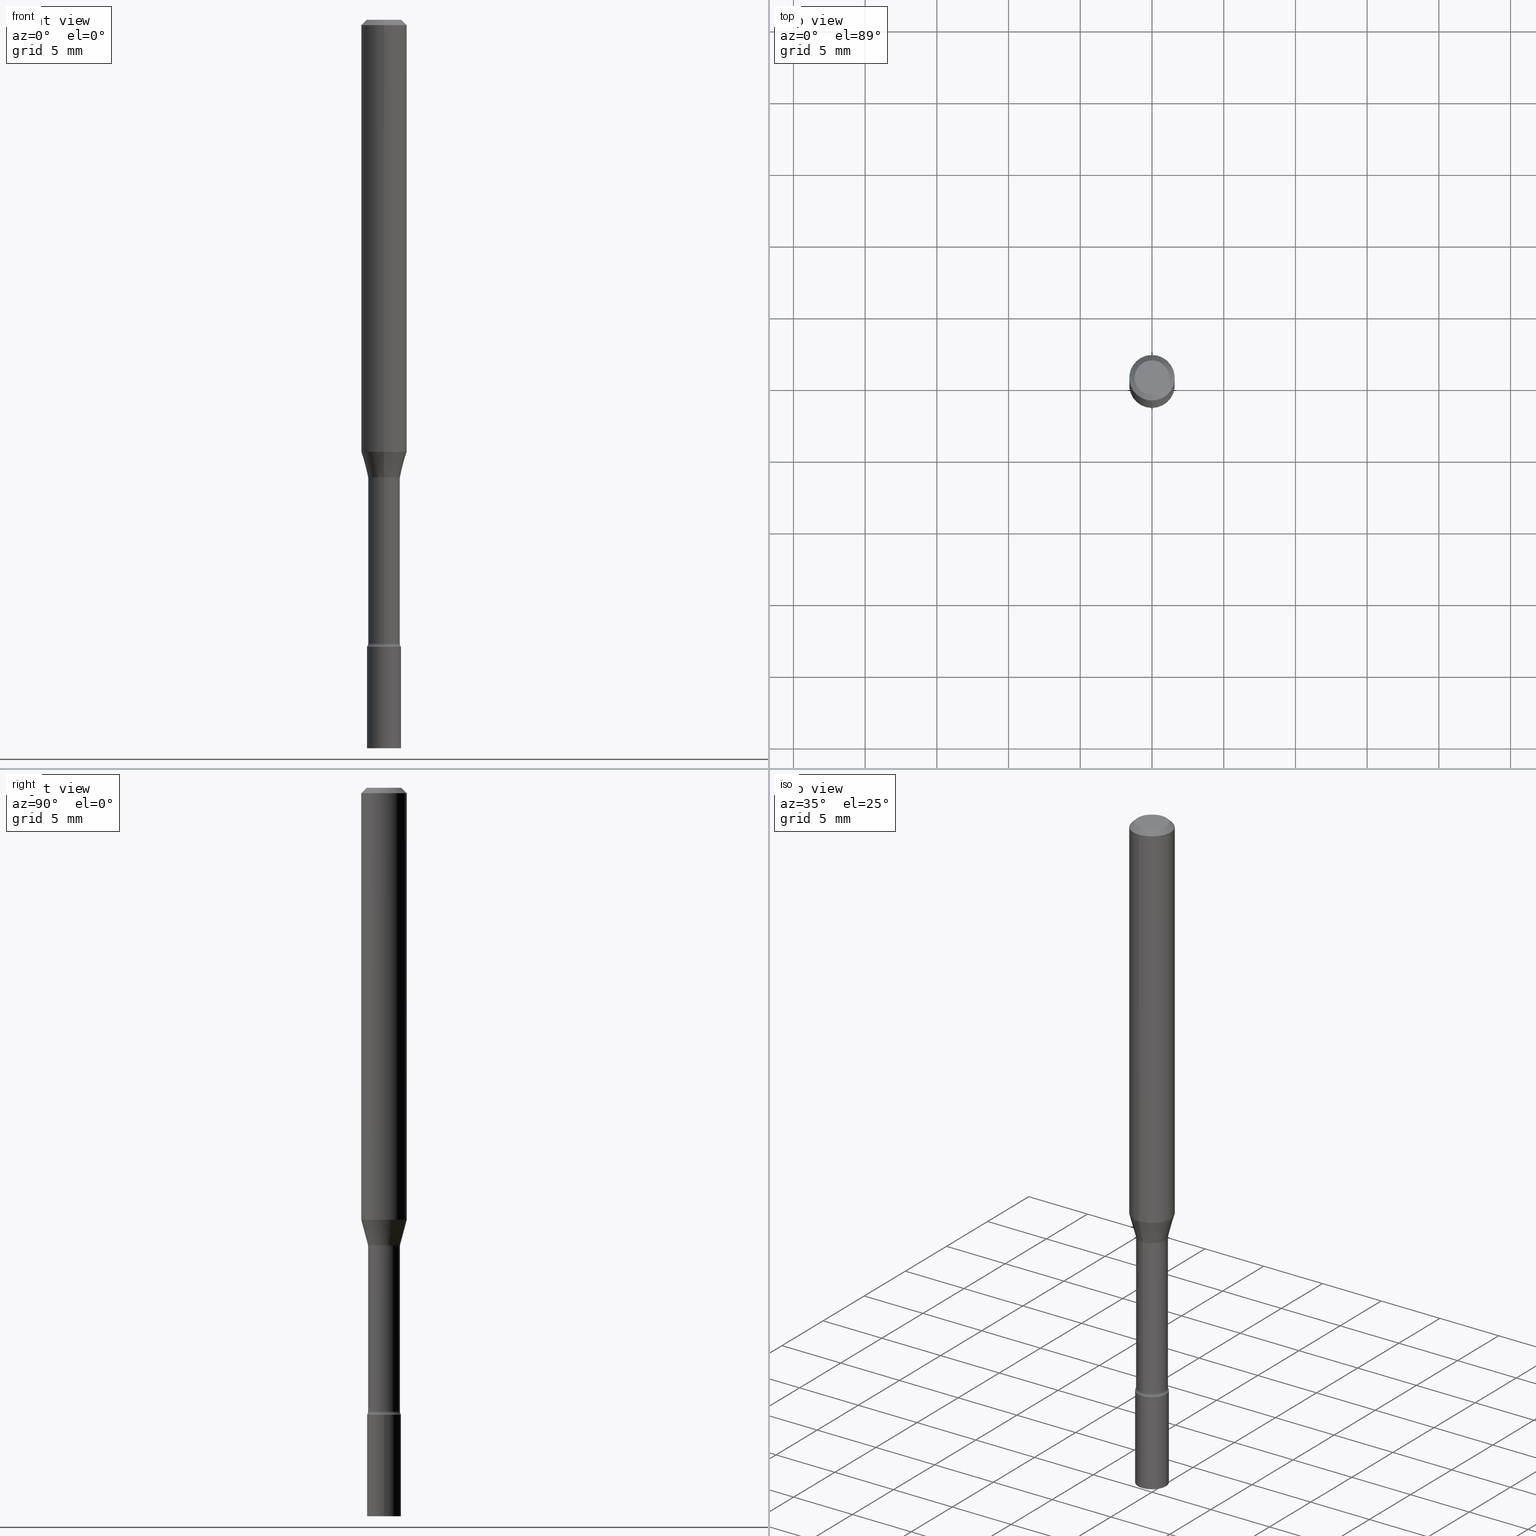
[diagram: canonical four-view strip — front | top / right | iso, engineering-drawing reading convention]
A machine part, canonical four-view strip (front | top / right | iso — engineering-drawing reading convention). The complete STEP part file that produces these views, byte-faithful:
ISO-10303-21;
HEADER;
FILE_DESCRIPTION (( 'STEP AP203' ),
    '1' );
FILE_NAME ('04287.STEP',
    '2024-03-08T22:51:43',
    ( '' ),
    ( '' ),
    'SwSTEP 2.0',
    'SolidWorks 2023',
    '' );
FILE_SCHEMA (( 'CONFIG_CONTROL_DESIGN' ));
ENDSEC;

DATA;
#1 = AXIS2_PLACEMENT_3D ( 'NONE', #285, #387, #252 ) ;
#2 = LOCAL_TIME ( 17, 51, 43.00000000000000000, #496 ) ;
#3 = DIRECTION ( 'NONE',  ( -2.445472560162581844E-29, 3.491475962933780831E-15, 1.000000000000000000 ) ) ;
#4 = DIRECTION ( 'NONE',  ( -2.445472560162581844E-29, 3.491475962933780831E-15, 1.000000000000000000 ) ) ;
#5 = CARTESIAN_POINT ( 'NONE',  ( -0.04649999999999999967, 3.304023721284465841E-16, -2.287304816968531530E-30 ) ) ;
#6 = EDGE_CURVE ( 'NONE', #137, #97, #373, .T. ) ;
#7 = DIRECTION ( 'NONE',  ( -6.982962677686265922E-15, -1.000000000000000000, 4.370956789862821150E-15 ) ) ;
#8 = TOROIDAL_SURFACE ( 'NONE', #453, 0.05870000000000000911, 0.01500000000000004108 ) ;
#9 = LINE ( 'NONE', #212, #74 ) ;
#10 = AXIS2_PLACEMENT_3D ( 'NONE', #476, #195, #115 ) ;
#11 = CC_DESIGN_PERSON_AND_ORGANIZATION_ASSIGNMENT ( #17, #173, ( #180 ) ) ;
#12 = DIRECTION ( 'NONE',  ( -1.807323732225330139E-15, -0.2588190451025181860, 0.9659258262890689783 ) ) ;
#13 = EDGE_CURVE ( 'NONE', #276, #502, #428, .T. ) ;
#14 = VECTOR ( 'NONE', #4, 39.37007874015748143 ) ;
#15 = CARTESIAN_POINT ( 'NONE',  ( -4.364351673553916201E-16, -0.06250000000000000000, 2.182172476833613019E-16 ) ) ;
#16 = ORIENTED_EDGE ( 'NONE', *, *, #46, .T. ) ;
#17 = PERSON_AND_ORGANIZATION ( #348, #108 ) ;
#18 = CARTESIAN_POINT ( 'NONE',  ( 3.066848801026419586E-29, -4.378633825285753837E-15, -1.254092501787273051 ) ) ;
#19 = APPROVAL_ROLE ( '' ) ;
#20 = DIRECTION ( 'NONE',  ( -6.982962677686266711E-15, -1.000000000000000000, 6.179098042681425901E-15 ) ) ;
#21 = ORIENTED_EDGE ( 'NONE', *, *, #456, .F. ) ;
#22 = APPROVAL_DATE_TIME ( #386, #95 ) ;
#23 = CIRCLE ( 'NONE', #165, 0.06250000000000000000 ) ;
#24 = CARTESIAN_POINT ( 'NONE',  ( 4.187310283291024254E-29, -5.978369332325803613E-15, -1.712273030308291366 ) ) ;
#25 = ADVANCED_FACE ( 'NONE', ( #356 ), #214, .T. ) ;
#26 = CARTESIAN_POINT ( 'NONE',  ( -4.287811248607203282E-16, -0.06250000000000005551, -0.01499999999999981209 ) ) ;
#27 = DIRECTION ( 'NONE',  ( -2.445472560162581844E-29, 3.491475962933780831E-15, 1.000000000000000000 ) ) ;
#28 = COORDINATED_UNIVERSAL_TIME_OFFSET ( 5, 0, .BEHIND. ) ;
#29 = FACE_OUTER_BOUND ( 'NONE', #314, .T. ) ;
#30 = ORIENTED_EDGE ( 'NONE', *, *, #144, .T. ) ;
#31 = EDGE_CURVE ( 'NONE', #70, #242, #167, .T. ) ;
#32 = CIRCLE ( 'NONE', #50, 0.04370000000000003743 ) ;
#33 = AXIS2_PLACEMENT_3D ( 'NONE', #250, #369, #78 ) ;
#34 = CARTESIAN_POINT ( 'NONE',  ( 3.668208840243879843E-31, -5.237213944400681970E-17, -0.01500000000000003067 ) ) ;
#35 = ORIENTED_EDGE ( 'NONE', *, *, #6, .F. ) ;
#36 = CARTESIAN_POINT ( 'NONE',  ( 4.170885858912095901E-16, 0.05869999999999562373, -1.257974787463811195 ) ) ;
#37 = LINE ( 'NONE', #443, #14 ) ;
#38 = ORIENTED_EDGE ( 'NONE', *, *, #239, .T. ) ;
#39 = CARTESIAN_POINT ( 'NONE',  ( 4.187310283291024254E-29, -5.978369332325803613E-15, -1.712273030308291366 ) ) ;
#40 = CARTESIAN_POINT ( 'NONE',  ( -4.364351673553912750E-16, -0.06250000000000005551, -0.01499999999999981209 ) ) ;
#41 = EDGE_LOOP ( 'NONE', ( #35, #257 ) ) ;
#42 = DIRECTION ( 'NONE',  ( -2.445468806185136877E-29, 3.491481338843145188E-15, 1.000000000000000000 ) ) ;
#43 = DIRECTION ( 'NONE',  ( -2.445472560162581844E-29, 3.491475962933780831E-15, 1.000000000000000000 ) ) ;
#44 = AXIS2_PLACEMENT_3D ( 'NONE', #47, #488, #209 ) ;
#45 = CARTESIAN_POINT ( 'NONE',  ( 4.364351673553919652E-16, 0.06249999999999995143, -0.01500000000000024751 ) ) ;
#46 = EDGE_CURVE ( 'NONE', #471, #242, #292, .T. ) ;
#47 = CARTESIAN_POINT ( 'NONE',  ( 0.000000000000000000, 0.000000000000000000, 0.000000000000000000 ) ) ;
#48 = ADVANCED_FACE ( 'NONE', ( #264 ), #439, .T. ) ;
#49 = CARTESIAN_POINT ( 'NONE',  ( 3.316907271900976096E-16, 0.04749999999999999362, -1.803021913811365056E-16 ) ) ;
#50 = AXIS2_PLACEMENT_3D ( 'NONE', #436, #357, #158 ) ;
#51 = CARTESIAN_POINT ( 'NONE',  ( 3.204547738278472978E-16, 0.04369999999999405610, -1.712273030308291810 ) ) ;
#52 = EDGE_LOOP ( 'NONE', ( #418, #38, #116, #350 ) ) ;
#53 = ORIENTED_EDGE ( 'NONE', *, *, #351, .F. ) ;
#54 = PERSON_AND_ORGANIZATION ( #348, #108 ) ;
#55 = LOCAL_TIME ( 17, 51, 43.00000000000000000, #176 ) ;
#56 = CARTESIAN_POINT ( 'NONE',  ( 3.076342824119105309E-29, -4.392188732406627973E-15, -1.257974787463810973 ) ) ;
#57 = ORIENTED_EDGE ( 'NONE', *, *, #128, .T. ) ;
#58 = DATE_AND_TIME ( #179, #411 ) ;
#59 = DIRECTION ( 'NONE',  ( 1.000000000000000000, -6.982962677686260400E-15, 0.000000000000000000 ) ) ;
#60 = ORIENTED_EDGE ( 'NONE', *, *, #90, .T. ) ;
#61 = CARTESIAN_POINT ( 'NONE',  ( -3.051554690148591023E-16, -0.04370000000000438811, -1.257974787463810751 ) ) ;
#62 = EDGE_CURVE ( 'NONE', #385, #336, #118, .T. ) ;
#63 = DIRECTION ( 'NONE',  ( -2.445472560162581844E-29, 3.491475962933780831E-15, 1.000000000000000000 ) ) ;
#64 = VERTEX_POINT ( 'NONE', #504 ) ;
#65 = DATE_AND_TIME ( #266, #55 ) ;
#66 = EDGE_CURVE ( 'NONE', #380, #70, #449, .T. ) ;
#67 = CARTESIAN_POINT ( 'NONE',  ( -4.364351673553623336E-16, -0.06250000000000410783, -1.185837444817704922 ) ) ;
#68 = ORIENTED_EDGE ( 'NONE', *, *, #396, .T. ) ;
#69 = FACE_OUTER_BOUND ( 'NONE', #280, .T. ) ;
#70 = VERTEX_POINT ( 'NONE', #67 ) ;
#71 = PERSON_AND_ORGANIZATION ( #348, #108 ) ;
#72 = DIRECTION ( 'NONE',  ( -2.445472560162581844E-29, 3.491475962933780831E-15, 1.000000000000000000 ) ) ;
#73 = CIRCLE ( 'NONE', #225, 0.01500000000000002720 ) ;
#74 = VECTOR ( 'NONE', #12, 39.37007874015748143 ) ;
#75 = DIRECTION ( 'NONE',  ( -2.445472560162581844E-29, 3.491475962933780831E-15, 1.000000000000000000 ) ) ;
#76 = EDGE_LOOP ( 'NONE', ( #297, #296, #335, #196 ) ) ;
#77 = EDGE_CURVE ( 'NONE', #187, #302, #489, .T. ) ;
#78 = DIRECTION ( 'NONE',  ( -6.982962677686266711E-15, -1.000000000000000000, 3.491475962933781620E-15 ) ) ;
#79 = DIRECTION ( 'NONE',  ( -2.445472560162581844E-29, 3.491475962933780831E-15, 1.000000000000000000 ) ) ;
#80 = ORIENTED_EDGE ( 'NONE', *, *, #90, .F. ) ;
#81 = APPLICATION_CONTEXT ( 'configuration controlled 3d designs of mechanical parts and assemblies' ) ;
#82 = LINE ( 'NONE', #5, #321 ) ;
#83 = CARTESIAN_POINT ( 'NONE',  ( -0.04649999999999999967, -6.165498658789225463E-15, -1.721000000000000085 ) ) ;
#84 = AXIS2_PLACEMENT_3D ( 'NONE', #483, #3, #152 ) ;
#85 = FACE_OUTER_BOUND ( 'NONE', #234, .T. ) ;
#86 = ADVANCED_FACE ( 'NONE', ( #29 ), #8, .F. ) ;
#87 = VECTOR ( 'NONE', #148, 39.37007874015748143 ) ;
#88 = EDGE_LOOP ( 'NONE', ( #477, #16, #189, #134 ) ) ;
#89 = ADVANCED_BREP_SHAPE_REPRESENTATION ( '04287', ( #101, #442, #288 ), #490 ) ;
#90 = EDGE_CURVE ( 'NONE', #385, #502, #403, .T. ) ;
#91 = DIRECTION ( 'NONE',  ( -6.982962677686265922E-15, -1.000000000000000000, 4.370956789862821150E-15 ) ) ;
#92 = DATE_TIME_ROLE ( 'creation_date' ) ;
#93 = TOROIDAL_SURFACE ( 'NONE', #341, 0.05870000000000000911, 0.01500000000000004108 ) ;
#94 = AXIS2_PLACEMENT_3D ( 'NONE', #517, #161, #7 ) ;
#95 = APPROVAL ( #347, 'UNSPECIFIED' ) ;
#96 = DIRECTION ( 'NONE',  ( -6.982962677686263555E-15, -1.000000000000000000, 0.000000000000000000 ) ) ;
#97 = VERTEX_POINT ( 'NONE', #186 ) ;
#98 = FACE_OUTER_BOUND ( 'NONE', #220, .T. ) ;
#99 = ORIENTED_EDGE ( 'NONE', *, *, #289, .F. ) ;
#100 =( LENGTH_UNIT ( ) NAMED_UNIT ( * ) SI_UNIT ( $, .METRE. ) );
#101 = MANIFOLD_SOLID_BREP ( 'Body-Move/Copy2[1]', #410 ) ;
#102 = ADVANCED_FACE ( 'NONE', ( #98 ), #109, .T. ) ;
#103 = DIRECTION ( 'NONE',  ( 1.000000000000000000, -6.982962677686260400E-15, 0.000000000000000000 ) ) ;
#104 = CARTESIAN_POINT ( 'NONE',  ( 4.187316711125359446E-29, -5.978360127301184921E-15, -1.712273030308291366 ) ) ;
#105 = DIRECTION ( 'NONE',  ( -2.445468806185136597E-29, 3.491481338843145583E-15, 1.000000000000000000 ) ) ;
#106 = PERSON_AND_ORGANIZATION_ROLE ( 'creator' ) ;
#107 = EDGE_CURVE ( 'NONE', #276, #388, #73, .T. ) ;
#108 = ORGANIZATION ( 'UNSPECIFIED', 'UNSPECIFIED', '' ) ;
#109 = CYLINDRICAL_SURFACE ( 'NONE', #415, 0.06250000000000000000 ) ;
#110 = ORIENTED_EDGE ( 'NONE', *, *, #13, .F. ) ;
#111 = DIRECTION ( 'NONE',  ( 2.445472560162581844E-29, -3.491475962933780831E-15, -1.000000000000000000 ) ) ;
#112 = ORIENTED_EDGE ( 'NONE', *, *, #491, .F. ) ;
#113 = DIRECTION ( 'NONE',  ( -2.445468806185136597E-29, 3.491481338843145583E-15, 1.000000000000000000 ) ) ;
#114 = EDGE_CURVE ( 'NONE', #502, #495, #391, .T. ) ;
#115 = DIRECTION ( 'NONE',  ( 1.000000000000000000, -6.982962677686260400E-15, 0.000000000000000000 ) ) ;
#116 = ORIENTED_EDGE ( 'NONE', *, *, #235, .F. ) ;
#117 = CARTESIAN_POINT ( 'NONE',  ( 3.668208840243879843E-31, -5.237213944400681970E-17, -0.01500000000000003067 ) ) ;
#118 = CIRCLE ( 'NONE', #481, 0.04421111260566396722 ) ;
#119 = CC_DESIGN_APPROVAL ( #95, ( #417 ) ) ;
#120 = CARTESIAN_POINT ( 'NONE',  ( 3.668208840243879843E-31, -5.237213944400681970E-17, -0.01500000000000003067 ) ) ;
#121 = ORIENTED_EDGE ( 'NONE', *, *, #107, .F. ) ;
#122 = DIRECTION ( 'NONE',  ( -6.982962677686265922E-15, -1.000000000000000000, 3.491475962933780831E-15 ) ) ;
#123 = PRODUCT_DEFINITION_SHAPE ( 'NONE', 'NONE',  #417 ) ;
#124 = FACE_OUTER_BOUND ( 'NONE', #468, .T. ) ;
#125 = EDGE_CURVE ( 'NONE', #64, #471, #508, .T. ) ;
#126 = DIRECTION ( 'NONE',  ( 7.105427357600997914E-15, 1.000000000000000000, 0.000000000000000000 ) ) ;
#127 = DIRECTION ( 'NONE',  ( 2.438088387897960049E-29, -3.491481338843145188E-15, -1.000000000000000000 ) ) ;
#128 = EDGE_CURVE ( 'NONE', #336, #380, #222, .T. ) ;
#129 = AXIS2_PLACEMENT_3D ( 'NONE', #441, #208, #204 ) ;
#130 = DIRECTION ( 'NONE',  ( -2.445472560162581844E-29, 3.491475962933780831E-15, 1.000000000000000000 ) ) ;
#131 = PLANE ( 'NONE',  #334 ) ;
#132 = CIRCLE ( 'NONE', #94, 0.06250000000000000000 ) ;
#133 = CC_DESIGN_SECURITY_CLASSIFICATION ( #180, ( #355 ) ) ;
#134 = ORIENTED_EDGE ( 'NONE', *, *, #401, .F. ) ;
#135 = ORIENTED_EDGE ( 'NONE', *, *, #199, .T. ) ;
#136 = CC_DESIGN_DATE_AND_TIME_ASSIGNMENT ( #65, #92, ( #417 ) ) ;
#137 = VERTEX_POINT ( 'NONE', #182 ) ;
#138 = PERSON_AND_ORGANIZATION ( #348, #108 ) ;
#139 = AXIS2_PLACEMENT_3D ( 'NONE', #301, #230, #377 ) ;
#140 = AXIS2_PLACEMENT_3D ( 'NONE', #283, #447, #432 ) ;
#141 = CARTESIAN_POINT ( 'NONE',  ( 4.208651815444620572E-29, -6.008839384149054309E-15, -1.721000000000000085 ) ) ;
#142 = PERSON_AND_ORGANIZATION ( #348, #108 ) ;
#143 = DIRECTION ( 'NONE',  ( -2.445472560162581844E-29, 3.491475962933780831E-15, 1.000000000000000000 ) ) ;
#144 = EDGE_CURVE ( 'NONE', #498, #276, #190, .T. ) ;
#145 = DIRECTION ( 'NONE',  ( -2.445472560162581844E-29, 3.491475962933780831E-15, 1.000000000000000000 ) ) ;
#146 = ORIENTED_EDGE ( 'NONE', *, *, #13, .T. ) ;
#147 = AXIS2_PLACEMENT_3D ( 'NONE', #319, #105, #265 ) ;
#148 = DIRECTION ( 'NONE',  ( -4.851104656540964275E-15, -0.7071067811865500152, -0.7071067811865450192 ) ) ;
#149 = ORIENTED_EDGE ( 'NONE', *, *, #6, .T. ) ;
#150 = DIRECTION ( 'NONE',  ( -6.982962677686265922E-15, -1.000000000000000000, 3.483106191921935554E-15 ) ) ;
#151 = EDGE_LOOP ( 'NONE', ( #361, #57, #413, #112 ) ) ;
#152 = DIRECTION ( 'NONE',  ( -6.982962677686266711E-15, -1.000000000000000000, 5.874941921858630857E-15 ) ) ;
#153 = CARTESIAN_POINT ( 'NONE',  ( 3.066848801026419586E-29, -4.378633825285753837E-15, -1.254092501787273051 ) ) ;
#154 = ORIENTED_EDGE ( 'NONE', *, *, #107, .T. ) ;
#155 = CARTESIAN_POINT ( 'NONE',  ( 0.000000000000000000, 0.000000000000000000, 0.000000000000000000 ) ) ;
#156 = AXIS2_PLACEMENT_3D ( 'NONE', #462, #419, #91 ) ;
#157 = AXIS2_PLACEMENT_3D ( 'NONE', #155, #113, #198 ) ;
#158 = DIRECTION ( 'NONE',  ( -6.982962677686264344E-15, -1.000000000000000000, 6.251368406554373050E-15 ) ) ;
#159 = ORIENTED_EDGE ( 'NONE', *, *, #114, .T. ) ;
#160 = ADVANCED_FACE ( 'NONE', ( #69 ), #479, .T. ) ;
#161 = DIRECTION ( 'NONE',  ( -2.445472560162581844E-29, 3.491475962933780831E-15, 1.000000000000000000 ) ) ;
#162 = FACE_OUTER_BOUND ( 'NONE', #513, .T. ) ;
#163 = CARTESIAN_POINT ( 'NONE',  ( 0.04649999999999999967, -6.333547148661465016E-15, -1.721000000000000085 ) ) ;
#164 = CONICAL_SURFACE ( 'NONE', #370, 0.06250000000000000000, 0.7853981633974483900 ) ;
#165 = AXIS2_PLACEMENT_3D ( 'NONE', #34, #473, #150 ) ;
#166 = EDGE_CURVE ( 'NONE', #276, #498, #32, .T. ) ;
#167 = LINE ( 'NONE', #15, #320 ) ;
#168 = CARTESIAN_POINT ( 'NONE',  ( 3.105071755272057582E-16, 0.04369999999999561041, -1.257974787463811195 ) ) ;
#169 = AXIS2_PLACEMENT_3D ( 'NONE', #104, #345, #269 ) ;
#170 = APPROVAL_PERSON_ORGANIZATION ( #142, #95, #499 ) ;
#171 = CC_DESIGN_APPROVAL ( #281, ( #180 ) ) ;
#172 = ORIENTED_EDGE ( 'NONE', *, *, #199, .F. ) ;
#173 = PERSON_AND_ORGANIZATION_ROLE ( 'classification_officer' ) ;
#174 = EDGE_CURVE ( 'NONE', #137, #302, #512, .T. ) ;
#175 = CARTESIAN_POINT ( 'NONE',  ( 0.000000000000000000, 0.000000000000000000, 0.000000000000000000 ) ) ;
#176 = COORDINATED_UNIVERSAL_TIME_OFFSET ( 5, 0, .BEHIND. ) ;
#177 = CARTESIAN_POINT ( 'NONE',  ( 4.208658276039803821E-29, -6.008830132209037171E-15, -1.721000000000000085 ) ) ;
#178 = ORIENTED_EDGE ( 'NONE', *, *, #62, .F. ) ;
#179 = CALENDAR_DATE ( 2024, 8, 3 ) ;
#180 = SECURITY_CLASSIFICATION ( '', '', #304 ) ;
#181 = CC_DESIGN_PERSON_AND_ORGANIZATION_ASSIGNMENT ( #309, #465, ( #202 ) ) ;
#182 = CARTESIAN_POINT ( 'NONE',  ( 0.04649999999999999967, -7.307670442198702662E-15, -2.000000000000000000 ) ) ;
#183 = LENGTH_MEASURE_WITH_UNIT ( LENGTH_MEASURE( 0.02539999999999999897 ), #100 );
#184 = APPLICATION_CONTEXT ( 'configuration controlled 3d designs of mechanical parts and assemblies' ) ;
#185 = DIRECTION ( 'NONE',  ( -2.445472560162581844E-29, 3.491475962933780831E-15, 1.000000000000000000 ) ) ;
#186 = CARTESIAN_POINT ( 'NONE',  ( -0.04649999999999999967, -6.165498658789225463E-15, -2.000000000000000000 ) ) ;
#187 = VERTEX_POINT ( 'NONE', #83 ) ;
#188 = DIRECTION ( 'NONE',  ( -2.445472560162581844E-29, 3.491475962933780831E-15, 1.000000000000000000 ) ) ;
#189 = ORIENTED_EDGE ( 'NONE', *, *, #235, .T. ) ;
#190 = CIRCLE ( 'NONE', #169, 0.04370000000000003743 ) ;
#191 = AXIS2_PLACEMENT_3D ( 'NONE', #117, #240, #284 ) ;
#192 = DIRECTION ( 'NONE',  ( -6.982962677686265133E-15, -1.000000000000000000, 3.491475962933781225E-15 ) ) ;
#193 = EDGE_LOOP ( 'NONE', ( #399, #270 ) ) ;
#194 = CC_DESIGN_PERSON_AND_ORGANIZATION_ASSIGNMENT ( #217, #306, ( #355 ) ) ;
#195 = DIRECTION ( 'NONE',  ( -2.445468806185136597E-29, 3.491481338843145583E-15, 1.000000000000000000 ) ) ;
#196 = ORIENTED_EDGE ( 'NONE', *, *, #66, .F. ) ;
#197 = APPROVAL_STATUS ( 'not_yet_approved' ) ;
#198 = DIRECTION ( 'NONE',  ( 1.000000000000000000, -6.982962677686267499E-15, 4.876176775795936353E-29 ) ) ;
#199 = EDGE_CURVE ( 'NONE', #498, #495, #37, .T. ) ;
#200 = CARTESIAN_POINT ( 'NONE',  ( 3.076338101710126374E-29, -4.392195495165068238E-15, -1.257974787463810973 ) ) ;
#201 = EDGE_LOOP ( 'NONE', ( #149, #324, #474, #510 ) ) ;
#202 = PRODUCT ( '04287', '04287', '', ( #224 ) ) ;
#203 = COORDINATED_UNIVERSAL_TIME_OFFSET ( 5, 0, .BEHIND. ) ;
#204 = DIRECTION ( 'NONE',  ( -6.982962677686265922E-15, -1.000000000000000000, 3.483106191921935554E-15 ) ) ;
#205 = AXIS2_PLACEMENT_3D ( 'NONE', #177, #185, #307 ) ;
#206 = ADVANCED_FACE ( 'NONE', ( #402 ), #164, .T. ) ;
#207 = LINE ( 'NONE', #237, #343 ) ;
#208 = DIRECTION ( 'NONE',  ( -2.445472560162581844E-29, 3.491475962933780831E-15, 1.000000000000000000 ) ) ;
#209 = DIRECTION ( 'NONE',  ( -6.982962677686265133E-15, -1.000000000000000000, 3.491475962933781225E-15 ) ) ;
#210 = DIRECTION ( 'NONE',  ( 6.982962677686265922E-15, 1.000000000000000000, -3.491475962933780831E-15 ) ) ;
#211 = CIRCLE ( 'NONE', #277, 0.04421111260566396722 ) ;
#212 = CARTESIAN_POINT ( 'NONE',  ( -3.087245492643056422E-16, -0.04421111260566835260, -1.254092501787272829 ) ) ;
#213 = EDGE_CURVE ( 'NONE', #336, #385, #211, .T. ) ;
#214 = CYLINDRICAL_SURFACE ( 'NONE', #1, 0.06250000000000000000 ) ;
#215 = ADVANCED_FACE ( 'NONE', ( #124 ), #93, .F. ) ;
#216 = ORIENTED_EDGE ( 'NONE', *, *, #114, .F. ) ;
#217 = PERSON_AND_ORGANIZATION ( #348, #108 ) ;
#218 = DIRECTION ( 'NONE',  ( -1.000000000000000000, 6.982962677686265922E-15, -4.883557194083112340E-29 ) ) ;
#219 = VERTEX_POINT ( 'NONE', #363 ) ;
#220 = EDGE_LOOP ( 'NONE', ( #381, #378, #223, #364 ) ) ;
#221 = DIRECTION ( 'NONE',  ( -6.982962677686265922E-15, -1.000000000000000000, 3.491475962933780831E-15 ) ) ;
#222 = LINE ( 'NONE', #308, #287 ) ;
#223 = ORIENTED_EDGE ( 'NONE', *, *, #31, .T. ) ;
#224 = MECHANICAL_CONTEXT ( 'NONE', #81, 'mechanical' ) ;
#225 = AXIS2_PLACEMENT_3D ( 'NONE', #263, #218, #422 ) ;
#226 = AXIS2_PLACEMENT_3D ( 'NONE', #39, #362, #122 ) ;
#227 = CARTESIAN_POINT ( 'NONE',  ( -3.051554690148899172E-16, -0.04370000000000001661, 1.525774995802063014E-16 ) ) ;
#228 = DIRECTION ( 'NONE',  ( 0.000000000000000000, 0.000000000000000000, 1.000000000000000000 ) ) ;
#229 = DIMENSIONAL_EXPONENTS ( 1.000000000000000000, 0.000000000000000000, 0.000000000000000000, 0.000000000000000000, 0.000000000000000000, 0.000000000000000000, 0.000000000000000000 ) ;
#230 = DIRECTION ( 'NONE',  ( -2.445472560162581844E-29, 3.491475962933780831E-15, 1.000000000000000000 ) ) ;
#231 = ORIENTED_EDGE ( 'NONE', *, *, #174, .T. ) ;
#232 = CARTESIAN_POINT ( 'NONE',  ( 4.890937612370273194E-29, -6.982962677686291165E-15, -2.000000000000000000 ) ) ;
#233 = CARTESIAN_POINT ( 'NONE',  ( 0.000000000000000000, 0.000000000000000000, 0.000000000000000000 ) ) ;
#234 = EDGE_LOOP ( 'NONE', ( #338, #135, #216, #110 ) ) ;
#235 = EDGE_CURVE ( 'NONE', #242, #219, #23, .T. ) ;
#236 = DIRECTION ( 'NONE',  ( 1.000000000000000000, -7.105427357601001070E-15, 4.926315442706180348E-29 ) ) ;
#237 = CARTESIAN_POINT ( 'NONE',  ( 4.440892098500625669E-16, 0.06250000000000000000, -2.182172476833613019E-16 ) ) ;
#238 = ORIENTED_EDGE ( 'NONE', *, *, #251, .T. ) ;
#239 = EDGE_CURVE ( 'NONE', #380, #219, #207, .T. ) ;
#240 = DIRECTION ( 'NONE',  ( 2.445472560162581844E-29, -3.491475962933780831E-15, -1.000000000000000000 ) ) ;
#241 = CARTESIAN_POINT ( 'NONE',  ( 3.066848801026419586E-29, -4.378633825285753837E-15, -1.254092501787273051 ) ) ;
#242 = VERTEX_POINT ( 'NONE', #40 ) ;
#243 = APPROVAL_ROLE ( '' ) ;
#244 = CARTESIAN_POINT ( 'NONE',  ( 4.170885858912210286E-16, 0.05869999999999409024, -1.712273030308291810 ) ) ;
#245 = ADVANCED_FACE ( 'NONE', ( #360 ), #367, .T. ) ;
#246 = DIRECTION ( 'NONE',  ( -2.445468806185136877E-29, 3.491481338843145188E-15, 1.000000000000000000 ) ) ;
#247 = DIRECTION ( 'NONE',  ( -1.000000000000000000, 6.982962677686265922E-15, -4.876176775795935793E-29 ) ) ;
#248 = AXIS2_PLACEMENT_3D ( 'NONE', #233, #79, #192 ) ;
#249 = CIRCLE ( 'NONE', #10, 0.04649999999999999967 ) ;
#250 = CARTESIAN_POINT ( 'NONE',  ( 7.070880024643344827E-46, -1.009531165673334864E-31, -2.891416628356383105E-17 ) ) ;
#251 = EDGE_CURVE ( 'NONE', #302, #187, #249, .T. ) ;
#252 = DIRECTION ( 'NONE',  ( -6.982962677686265922E-15, -1.000000000000000000, 3.491475962933780831E-15 ) ) ;
#253 = ADVANCED_FACE ( 'NONE', ( #394 ), #404, .T. ) ;
#254 = AXIS2_PLACEMENT_3D ( 'NONE', #244, #236, #126 ) ;
#255 = ADVANCED_FACE ( 'NONE', ( #323 ), #484, .T. ) ;
#256 = EDGE_CURVE ( 'NONE', #388, #353, #365, .T. ) ;
#257 = ORIENTED_EDGE ( 'NONE', *, *, #271, .F. ) ;
#258 = AXIS2_PLACEMENT_3D ( 'NONE', #349, #63, #506 ) ;
#259 = ORIENTED_EDGE ( 'NONE', *, *, #256, .T. ) ;
#260 = APPROVAL_PERSON_ORGANIZATION ( #54, #379, #19 ) ;
#261 = DIRECTION ( 'NONE',  ( 1.000000000000000000, 0.000000000000000000, 0.000000000000000000 ) ) ;
#262 = EDGE_LOOP ( 'NONE', ( #53, #311, #154, #259 ) ) ;
#263 = CARTESIAN_POINT ( 'NONE',  ( -4.098999091801423646E-16, -0.05870000000000603901, -1.712273030308291144 ) ) ;
#264 = FACE_OUTER_BOUND ( 'NONE', #76, .T. ) ;
#265 = DIRECTION ( 'NONE',  ( 1.000000000000000000, -6.982962677686260400E-15, 0.000000000000000000 ) ) ;
#266 = CALENDAR_DATE ( 2024, 8, 3 ) ;
#267 = CIRCLE ( 'NONE', #84, 0.04649999999999999967 ) ;
#268 = AXIS2_PLACEMENT_3D ( 'NONE', #232, #466, #103 ) ;
#269 = DIRECTION ( 'NONE',  ( -6.982962677686264344E-15, -1.000000000000000000, 6.251368406554373050E-15 ) ) ;
#270 = ORIENTED_EDGE ( 'NONE', *, *, #396, .F. ) ;
#271 = EDGE_CURVE ( 'NONE', #97, #137, #382, .T. ) ;
#272 = DIRECTION ( 'NONE',  ( -2.445468806185136597E-29, 3.491481338843145583E-15, 1.000000000000000000 ) ) ;
#273 = ORIENTED_EDGE ( 'NONE', *, *, #271, .T. ) ;
#274 = DATE_AND_TIME ( #354, #2 ) ;
#275 = DIRECTION ( 'NONE',  ( -2.445472560162581844E-29, 3.491475962933780831E-15, 1.000000000000000000 ) ) ;
#276 = VERTEX_POINT ( 'NONE', #425 ) ;
#277 = AXIS2_PLACEMENT_3D ( 'NONE', #241, #43, #389 ) ;
#278 = CARTESIAN_POINT ( 'NONE',  ( 3.791140294341927456E-16, 0.04421111260565958878, -1.254092501787273273 ) ) ;
#279 = CARTESIAN_POINT ( 'NONE',  ( 0.04649999999999999967, -3.247077645124114474E-16, 2.267422200745110326E-30 ) ) ;
#280 = EDGE_LOOP ( 'NONE', ( #172, #30, #146, #458 ) ) ;
#281 = APPROVAL ( #197, 'UNSPECIFIED' ) ;
#282 = PLANE ( 'NONE',  #450 ) ;
#283 = CARTESIAN_POINT ( 'NONE',  ( 4.208651815444620572E-29, -6.008839384149054309E-15, -1.721000000000000085 ) ) ;
#284 = DIRECTION ( 'NONE',  ( 6.982962677686265922E-15, 1.000000000000000000, -3.483106191921935554E-15 ) ) ;
#285 = CARTESIAN_POINT ( 'NONE',  ( 0.000000000000000000, 0.000000000000000000, 0.000000000000000000 ) ) ;
#286 = FACE_OUTER_BOUND ( 'NONE', #88, .T. ) ;
#287 = VECTOR ( 'NONE', #310, 39.37007874015748143 ) ;
#288 = AXIS2_PLACEMENT_3D ( 'NONE', #376, #228, #261 ) ;
#289 = EDGE_CURVE ( 'NONE', #336, #495, #331, .T. ) ;
#290 = DESIGN_CONTEXT ( 'detailed design', #184, 'design' ) ;
#291 = EDGE_CURVE ( 'NONE', #219, #242, #493, .T. ) ;
#292 = LINE ( 'NONE', #26, #87 ) ;
#293 = AXIS2_PLACEMENT_3D ( 'NONE', #56, #467, #497 ) ;
#294 = AXIS2_PLACEMENT_3D ( 'NONE', #153, #275, #519 ) ;
#295 = EDGE_CURVE ( 'NONE', #471, #64, #313, .T. ) ;
#296 = ORIENTED_EDGE ( 'NONE', *, *, #213, .T. ) ;
#297 = ORIENTED_EDGE ( 'NONE', *, *, #128, .F. ) ;
#298 =( NAMED_UNIT ( * ) SI_UNIT ( $, .STERADIAN. ) SOLID_ANGLE_UNIT ( ) );
#299 = EDGE_CURVE ( 'NONE', #70, #380, #132, .T. ) ;
#300 = AXIS2_PLACEMENT_3D ( 'NONE', #501, #305, #96 ) ;
#301 = CARTESIAN_POINT ( 'NONE',  ( 3.066848801026419586E-29, -4.378633825285753837E-15, -1.254092501787273051 ) ) ;
#302 = VERTEX_POINT ( 'NONE', #163 ) ;
#303 = CONICAL_SURFACE ( 'NONE', #191, 0.06250000000000000000, 0.7853981633974483900 ) ;
#304 = SECURITY_CLASSIFICATION_LEVEL ( 'unclassified' ) ;
#305 = DIRECTION ( 'NONE',  ( -1.000000000000000000, 6.982962677686265922E-15, -4.883557194083112340E-29 ) ) ;
#306 = PERSON_AND_ORGANIZATION_ROLE ( 'creator' ) ;
#307 = DIRECTION ( 'NONE',  ( -6.982962677686266711E-15, -1.000000000000000000, 5.874941921858630857E-15 ) ) ;
#308 = CARTESIAN_POINT ( 'NONE',  ( 3.141388490182939337E-16, 0.04421111260565958878, -1.254092501787273273 ) ) ;
#309 = PERSON_AND_ORGANIZATION ( #348, #108 ) ;
#310 = DIRECTION ( 'NONE',  ( 1.839019923739600315E-15, 0.2588190451025249583, 0.9659258262890670910 ) ) ;
#311 = ORIENTED_EDGE ( 'NONE', *, *, #166, .F. ) ;
#312 = CLOSED_SHELL ( 'NONE', ( #86, #464, #511, #406, #25, #253, #48, #102, #206, #486, #340, #409, #160, #215 ) ) ;
#313 = CIRCLE ( 'NONE', #33, 0.04749999999999999362 ) ;
#314 = EDGE_LOOP ( 'NONE', ( #423, #437, #431, #80 ) ) ;
#315 = CARTESIAN_POINT ( 'NONE',  ( 0.000000000000000000, 0.000000000000000000, 0.000000000000000000 ) ) ;
#316 = ORIENTED_EDGE ( 'NONE', *, *, #295, .T. ) ;
#317 = DIRECTION ( 'NONE',  ( -6.982962677686265922E-15, -1.000000000000000000, 3.491475962933780831E-15 ) ) ;
#318 = DIRECTION ( 'NONE',  ( -6.982962677686265922E-15, -1.000000000000000000, 3.491475962933780831E-15 ) ) ;
#319 = CARTESIAN_POINT ( 'NONE',  ( 4.890937612370273194E-29, -6.982962677686291165E-15, -2.000000000000000000 ) ) ;
#320 = VECTOR ( 'NONE', #130, 39.37007874015748143 ) ;
#321 = VECTOR ( 'NONE', #42, 39.37007874015748143 ) ;
#322 = DIRECTION ( 'NONE',  ( 7.105427357600997914E-15, 1.000000000000000000, 0.000000000000000000 ) ) ;
#323 = FACE_OUTER_BOUND ( 'NONE', #463, .T. ) ;
#324 = ORIENTED_EDGE ( 'NONE', *, *, #456, .T. ) ;
#325 = CALENDAR_DATE ( 2024, 8, 3 ) ;
#326 = CARTESIAN_POINT ( 'NONE',  ( 3.076342824119105309E-29, -4.392188732406627973E-15, -1.257974787463810973 ) ) ;
#327 = CYLINDRICAL_SURFACE ( 'NONE', #44, 0.04370000000000001661 ) ;
#328 = CARTESIAN_POINT ( 'NONE',  ( -3.773273898774340269E-16, -0.04749999999999999362, 1.369309419557907868E-16 ) ) ;
#329 = DIRECTION ( 'NONE',  ( 1.000000000000000000, -7.105427357601001070E-15, 4.926315442706180348E-29 ) ) ;
#330 = CC_DESIGN_PERSON_AND_ORGANIZATION_ASSIGNMENT ( #469, #106, ( #417 ) ) ;
#331 = CIRCLE ( 'NONE', #482, 0.01500000000000004455 ) ;
#332 = ADVANCED_FACE ( 'NONE', ( #162 ), #435, .T. ) ;
#333 = VECTOR ( 'NONE', #246, 39.37007874015748143 ) ;
#334 = AXIS2_PLACEMENT_3D ( 'NONE', #49, #408, #210 ) ;
#335 = ORIENTED_EDGE ( 'NONE', *, *, #491, .T. ) ;
#336 = VERTEX_POINT ( 'NONE', #278 ) ;
#337 = EDGE_CURVE ( 'NONE', #495, #502, #392, .T. ) ;
#338 = ORIENTED_EDGE ( 'NONE', *, *, #166, .T. ) ;
#339 = PERSON_AND_ORGANIZATION_ROLE ( 'design_supplier' ) ;
#340 = ADVANCED_FACE ( 'NONE', ( #366 ), #359, .F. ) ;
#341 = AXIS2_PLACEMENT_3D ( 'NONE', #200, #515, #318 ) ;
#342 = CARTESIAN_POINT ( 'NONE',  ( 3.076338101710126374E-29, -4.392195495165068238E-15, -1.257974787463810973 ) ) ;
#343 = VECTOR ( 'NONE', #75, 39.37007874015748143 ) ;
#344 = APPROVAL_DATE_TIME ( #58, #379 ) ;
#345 = DIRECTION ( 'NONE',  ( -2.445472560162581844E-29, 3.491475962933780831E-15, 1.000000000000000000 ) ) ;
#346 = EDGE_LOOP ( 'NONE', ( #420, #507, #516, #444 ) ) ;
#347 = APPROVAL_STATUS ( 'not_yet_approved' ) ;
#348 = PERSON ( 'UNSPECIFIED', 'UNSPECIFIED', 'UNSPECIFIED', ('UNSPECIFIED'), ('UNSPECIFIED'), ('UNSPECIFIED') ) ;
#349 = CARTESIAN_POINT ( 'NONE',  ( 7.070880024643344827E-46, -1.009531165673334864E-31, -2.891416628356383105E-17 ) ) ;
#350 = ORIENTED_EDGE ( 'NONE', *, *, #31, .F. ) ;
#351 = EDGE_CURVE ( 'NONE', #498, #353, #429, .T. ) ;
#352 = DIRECTION ( 'NONE',  ( -6.982962677686265922E-15, -1.000000000000000000, 3.491475962933780831E-15 ) ) ;
#353 = VERTEX_POINT ( 'NONE', #514 ) ;
#354 = CALENDAR_DATE ( 2024, 8, 3 ) ;
#355 = PRODUCT_DEFINITION_FORMATION_WITH_SPECIFIED_SOURCE ( 'ANY', '', #202, .NOT_KNOWN. ) ;
#356 = FACE_OUTER_BOUND ( 'NONE', #52, .T. ) ;
#357 = DIRECTION ( 'NONE',  ( -2.445472560162581844E-29, 3.491475962933780831E-15, 1.000000000000000000 ) ) ;
#358 = ORIENTED_EDGE ( 'NONE', *, *, #125, .T. ) ;
#359 = PLANE ( 'NONE',  #440 ) ;
#360 = FACE_OUTER_BOUND ( 'NONE', #201, .T. ) ;
#361 = ORIENTED_EDGE ( 'NONE', *, *, #62, .T. ) ;
#362 = DIRECTION ( 'NONE',  ( -2.445472560162581844E-29, 3.491475962933780831E-15, 1.000000000000000000 ) ) ;
#363 = CARTESIAN_POINT ( 'NONE',  ( 4.440892098500918040E-16, 0.06249999999999995837, -0.01500000000000024751 ) ) ;
#364 = ORIENTED_EDGE ( 'NONE', *, *, #291, .F. ) ;
#365 = CIRCLE ( 'NONE', #205, 0.04649999999999999967 ) ;
#366 = FACE_OUTER_BOUND ( 'NONE', #193, .T. ) ;
#367 = CYLINDRICAL_SURFACE ( 'NONE', #374, 0.04649999999999999967 ) ;
#368 = CARTESIAN_POINT ( 'NONE',  ( 4.440892098500917054E-16, 0.06249999999999588524, -1.185837444817705588 ) ) ;
#369 = DIRECTION ( 'NONE',  ( -2.445472560162581844E-29, 3.491475962933780831E-15, 1.000000000000000000 ) ) ;
#370 = AXIS2_PLACEMENT_3D ( 'NONE', #120, #111, #398 ) ;
#371 = TOROIDAL_SURFACE ( 'NONE', #416, 0.05870000000000006463, 0.01500000000000002373 ) ;
#372 = CC_DESIGN_PERSON_AND_ORGANIZATION_ASSIGNMENT ( #138, #339, ( #355 ) ) ;
#373 = CIRCLE ( 'NONE', #147, 0.04649999999999999967 ) ;
#374 = AXIS2_PLACEMENT_3D ( 'NONE', #315, #272, #433 ) ;
#375 = ORIENTED_EDGE ( 'NONE', *, *, #144, .F. ) ;
#376 = CARTESIAN_POINT ( 'NONE',  ( 0.000000000000000000, 0.000000000000000000, 0.000000000000000000 ) ) ;
#377 = DIRECTION ( 'NONE',  ( -6.982962677686266711E-15, -1.000000000000000000, 6.179098042681425901E-15 ) ) ;
#378 = ORIENTED_EDGE ( 'NONE', *, *, #66, .T. ) ;
#379 = APPROVAL ( #503, 'UNSPECIFIED' ) ;
#380 = VERTEX_POINT ( 'NONE', #368 ) ;
#381 = ORIENTED_EDGE ( 'NONE', *, *, #239, .F. ) ;
#382 = CIRCLE ( 'NONE', #268, 0.04649999999999999967 ) ;
#383 = APPLICATION_PROTOCOL_DEFINITION ( 'international standard', 'config_control_design', 1994, #184 ) ;
#384 = DIRECTION ( 'NONE',  ( -2.445468806185136597E-29, 3.491481338843145583E-15, 1.000000000000000000 ) ) ;
#385 = VERTEX_POINT ( 'NONE', #407 ) ;
#386 = DATE_AND_TIME ( #459, #470 ) ;
#387 = DIRECTION ( 'NONE',  ( -2.445472560162581844E-29, 3.491475962933780831E-15, 1.000000000000000000 ) ) ;
#388 = VERTEX_POINT ( 'NONE', #400 ) ;
#389 = DIRECTION ( 'NONE',  ( -6.982962677686266711E-15, -1.000000000000000000, 6.179098042681425901E-15 ) ) ;
#390 = ORIENTED_EDGE ( 'NONE', *, *, #351, .T. ) ;
#391 = CIRCLE ( 'NONE', #293, 0.04370000000000000273 ) ;
#392 = CIRCLE ( 'NONE', #494, 0.04370000000000000273 ) ;
#393 = DIRECTION ( 'NONE',  ( -2.445472560162581564E-29, 3.491475962933780831E-15, 1.000000000000000000 ) ) ;
#394 = FACE_OUTER_BOUND ( 'NONE', #151, .T. ) ;
#395 = ORIENTED_EDGE ( 'NONE', *, *, #77, .F. ) ;
#396 = EDGE_CURVE ( 'NONE', #353, #388, #267, .T. ) ;
#397 = FACE_OUTER_BOUND ( 'NONE', #41, .T. ) ;
#398 = DIRECTION ( 'NONE',  ( 6.982962677686265922E-15, 1.000000000000000000, -3.483106191921935554E-15 ) ) ;
#399 = ORIENTED_EDGE ( 'NONE', *, *, #256, .F. ) ;
#400 = CARTESIAN_POINT ( 'NONE',  ( -3.247077645123694899E-16, -0.04650000000000602957, -1.720999999999999863 ) ) ;
#401 = EDGE_CURVE ( 'NONE', #64, #219, #478, .T. ) ;
#402 = FACE_OUTER_BOUND ( 'NONE', #346, .T. ) ;
#403 = CIRCLE ( 'NONE', #300, 0.01500000000000004455 ) ;
#404 = CONICAL_SURFACE ( 'NONE', #294, 0.04421111260566396722, 0.2617993877991502960 ) ;
#405 = CARTESIAN_POINT ( 'NONE',  ( 3.247077645124535035E-16, 0.04649999999999399058, -1.721000000000000307 ) ) ;
#406 = ADVANCED_FACE ( 'NONE', ( #286 ), #303, .T. ) ;
#407 = CARTESIAN_POINT ( 'NONE',  ( -3.087245492643056422E-16, -0.04421111260566835260, -1.254092501787272829 ) ) ;
#408 = DIRECTION ( 'NONE',  ( 2.445472560162581564E-29, -3.491475962933780831E-15, -1.000000000000000000 ) ) ;
#409 = ADVANCED_FACE ( 'NONE', ( #448 ), #509, .F. ) ;
#410 = CLOSED_SHELL ( 'NONE', ( #245, #255, #332, #445 ) ) ;
#411 = LOCAL_TIME ( 17, 51, 43.00000000000000000, #28 ) ;
#412 = FACE_OUTER_BOUND ( 'NONE', #434, .T. ) ;
#413 = ORIENTED_EDGE ( 'NONE', *, *, #299, .F. ) ;
#414 = COORDINATED_UNIVERSAL_TIME_OFFSET ( 5, 0, .BEHIND. ) ;
#415 = AXIS2_PLACEMENT_3D ( 'NONE', #175, #188, #352 ) ;
#416 = AXIS2_PLACEMENT_3D ( 'NONE', #24, #145, #221 ) ;
#417 = PRODUCT_DEFINITION ( 'UNKNOWN', '', #355, #290 ) ;
#418 = ORIENTED_EDGE ( 'NONE', *, *, #299, .T. ) ;
#419 = DIRECTION ( 'NONE',  ( -2.445472560162581844E-29, 3.491475962933780831E-15, 1.000000000000000000 ) ) ;
#420 = ORIENTED_EDGE ( 'NONE', *, *, #46, .F. ) ;
#421 =( NAMED_UNIT ( * ) PLANE_ANGLE_UNIT ( ) SI_UNIT ( $, .RADIAN. ) );
#422 = DIRECTION ( 'NONE',  ( -6.982962677686263555E-15, -1.000000000000000000, 0.000000000000000000 ) ) ;
#423 = ORIENTED_EDGE ( 'NONE', *, *, #213, .F. ) ;
#424 = APPLICATION_PROTOCOL_DEFINITION ( 'international standard', 'config_control_design', 1994, #81 ) ;
#425 = CARTESIAN_POINT ( 'NONE',  ( -3.051554690148482062E-16, -0.04370000000000601181, -1.712273030308291144 ) ) ;
#426 = APPROVAL_DATE_TIME ( #485, #281 ) ;
#427 = DIRECTION ( 'NONE',  ( -2.445472560162581844E-29, 3.491475962933780831E-15, 1.000000000000000000 ) ) ;
#428 = LINE ( 'NONE', #227, #460 ) ;
#429 = CIRCLE ( 'NONE', #254, 0.01500000000000002720 ) ;
#430 = FACE_OUTER_BOUND ( 'NONE', #520, .T. ) ;
#431 = ORIENTED_EDGE ( 'NONE', *, *, #337, .T. ) ;
#432 = DIRECTION ( 'NONE',  ( 1.000000000000000000, -6.982962677686265922E-15, 4.876176775795935793E-29 ) ) ;
#433 = DIRECTION ( 'NONE',  ( 1.000000000000000000, -6.982962677686267499E-15, 4.876176775795936353E-29 ) ) ;
#434 = EDGE_LOOP ( 'NONE', ( #358, #316 ) ) ;
#435 = CYLINDRICAL_SURFACE ( 'NONE', #157, 0.04649999999999999967 ) ;
#436 = CARTESIAN_POINT ( 'NONE',  ( 4.187316711125359446E-29, -5.978360127301184921E-15, -1.712273030308291366 ) ) ;
#437 = ORIENTED_EDGE ( 'NONE', *, *, #289, .T. ) ;
#438 = CC_DESIGN_DATE_AND_TIME_ASSIGNMENT ( #274, #475, ( #180 ) ) ;
#439 = CONICAL_SURFACE ( 'NONE', #139, 0.04421111260566396722, 0.2617993877991502960 ) ;
#440 = AXIS2_PLACEMENT_3D ( 'NONE', #405, #393, #317 ) ;
#441 = CARTESIAN_POINT ( 'NONE',  ( 3.668208840243879843E-31, -5.237213944400681970E-17, -0.01500000000000003067 ) ) ;
#442 = MANIFOLD_SOLID_BREP ( 'Body-Move/Copy2[2]', #312 ) ;
#443 = CARTESIAN_POINT ( 'NONE',  ( 3.105071755271638499E-16, 0.04370000000000001661, -1.525774995802063014E-16 ) ) ;
#444 = ORIENTED_EDGE ( 'NONE', *, *, #291, .T. ) ;
#445 = ADVANCED_FACE ( 'NONE', ( #397 ), #282, .T. ) ;
#446 = CARTESIAN_POINT ( 'NONE',  ( 3.247077645124602582E-16, 0.04649999999999301914, -2.000000000000000444 ) ) ;
#447 = DIRECTION ( 'NONE',  ( -2.438088387897960049E-29, 3.491481338843145188E-15, 1.000000000000000000 ) ) ;
#448 = FACE_OUTER_BOUND ( 'NONE', #262, .T. ) ;
#449 = CIRCLE ( 'NONE', #156, 0.06250000000000000000 ) ;
#450 = AXIS2_PLACEMENT_3D ( 'NONE', #446, #127, #247 ) ;
#451 = DIRECTION ( 'NONE',  ( -6.982962677686266711E-15, -1.000000000000000000, 6.251368406554377784E-15 ) ) ;
#452 = UNCERTAINTY_MEASURE_WITH_UNIT (LENGTH_MEASURE( 1.000000000000000082E-05 ), #505, 'distance_accuracy_value', 'NONE');
#453 = AXIS2_PLACEMENT_3D ( 'NONE', #342, #143, #457 ) ;
#454 = CC_DESIGN_APPROVAL ( #379, ( #355 ) ) ;
#455 = SHAPE_DEFINITION_REPRESENTATION ( #123, #89 ) ;
#456 = EDGE_CURVE ( 'NONE', #97, #187, #82, .T. ) ;
#457 = DIRECTION ( 'NONE',  ( -6.982962677686265922E-15, -1.000000000000000000, 3.491475962933780831E-15 ) ) ;
#458 = ORIENTED_EDGE ( 'NONE', *, *, #337, .F. ) ;
#459 = CALENDAR_DATE ( 2024, 8, 3 ) ;
#460 = VECTOR ( 'NONE', #27, 39.37007874015748143 ) ;
#461 = VECTOR ( 'NONE', #487, 39.37007874015748143 ) ;
#462 = CARTESIAN_POINT ( 'NONE',  ( 2.899932932115008172E-29, -4.140322934527831703E-15, -1.185837444817705144 ) ) ;
#463 = EDGE_LOOP ( 'NONE', ( #238, #480 ) ) ;
#464 = ADVANCED_FACE ( 'NONE', ( #85 ), #327, .T. ) ;
#465 = PERSON_AND_ORGANIZATION_ROLE ( 'design_owner' ) ;
#466 = DIRECTION ( 'NONE',  ( -2.445468806185136597E-29, 3.491481338843145583E-15, 1.000000000000000000 ) ) ;
#467 = DIRECTION ( 'NONE',  ( -2.445472560162581844E-29, 3.491475962933780831E-15, 1.000000000000000000 ) ) ;
#468 = EDGE_LOOP ( 'NONE', ( #99, #178, #60, #159 ) ) ;
#469 = PERSON_AND_ORGANIZATION ( #348, #108 ) ;
#470 = LOCAL_TIME ( 17, 51, 43.00000000000000000, #414 ) ;
#471 = VERTEX_POINT ( 'NONE', #328 ) ;
#472 = LOCAL_TIME ( 17, 51, 43.00000000000000000, #203 ) ;
#473 = DIRECTION ( 'NONE',  ( -2.445472560162581844E-29, 3.491475962933780831E-15, 1.000000000000000000 ) ) ;
#474 = ORIENTED_EDGE ( 'NONE', *, *, #251, .F. ) ;
#475 = DATE_TIME_ROLE ( 'classification_date' ) ;
#476 = CARTESIAN_POINT ( 'NONE',  ( 4.208651815444620572E-29, -6.008839384149054309E-15, -1.721000000000000085 ) ) ;
#477 = ORIENTED_EDGE ( 'NONE', *, *, #295, .F. ) ;
#478 = LINE ( 'NONE', #45, #461 ) ;
#479 = CYLINDRICAL_SURFACE ( 'NONE', #248, 0.04370000000000001661 ) ;
#480 = ORIENTED_EDGE ( 'NONE', *, *, #77, .T. ) ;
#481 = AXIS2_PLACEMENT_3D ( 'NONE', #18, #427, #20 ) ;
#482 = AXIS2_PLACEMENT_3D ( 'NONE', #36, #329, #322 ) ;
#483 = CARTESIAN_POINT ( 'NONE',  ( 4.208658276039803821E-29, -6.008830132209037171E-15, -1.721000000000000085 ) ) ;
#484 = PLANE ( 'NONE',  #140 ) ;
#485 = DATE_AND_TIME ( #325, #472 ) ;
#486 = ADVANCED_FACE ( 'NONE', ( #412 ), #131, .F. ) ;
#487 = DIRECTION ( 'NONE',  ( 4.937700262164548042E-15, 0.7071067811865451302, -0.7071067811865499042 ) ) ;
#488 = DIRECTION ( 'NONE',  ( -2.445472560162581844E-29, 3.491475962933780831E-15, 1.000000000000000000 ) ) ;
#489 = CIRCLE ( 'NONE', #492, 0.04649999999999999967 ) ;
#490 =( GEOMETRIC_REPRESENTATION_CONTEXT ( 3 ) GLOBAL_UNCERTAINTY_ASSIGNED_CONTEXT ( ( #452 ) ) GLOBAL_UNIT_ASSIGNED_CONTEXT ( ( #505, #421, #298 ) ) REPRESENTATION_CONTEXT ( 'NONE', 'WORKASPACE' ) );
#491 = EDGE_CURVE ( 'NONE', #385, #70, #9, .T. ) ;
#492 = AXIS2_PLACEMENT_3D ( 'NONE', #141, #384, #59 ) ;
#493 = CIRCLE ( 'NONE', #129, 0.06250000000000000000 ) ;
#494 = AXIS2_PLACEMENT_3D ( 'NONE', #326, #72, #451 ) ;
#495 = VERTEX_POINT ( 'NONE', #168 ) ;
#496 = COORDINATED_UNIVERSAL_TIME_OFFSET ( 5, 0, .BEHIND. ) ;
#497 = DIRECTION ( 'NONE',  ( -6.982962677686266711E-15, -1.000000000000000000, 6.251368406554377784E-15 ) ) ;
#498 = VERTEX_POINT ( 'NONE', #51 ) ;
#499 = APPROVAL_ROLE ( '' ) ;
#500 = APPROVAL_PERSON_ORGANIZATION ( #71, #281, #243 ) ;
#501 = CARTESIAN_POINT ( 'NONE',  ( -4.098999091801531128E-16, -0.05870000000000440143, -1.257974787463810751 ) ) ;
#502 = VERTEX_POINT ( 'NONE', #61 ) ;
#503 = APPROVAL_STATUS ( 'not_yet_approved' ) ;
#504 = CARTESIAN_POINT ( 'NONE',  ( 3.840629472727447874E-16, 0.04749999999999999362, -1.947592745229184119E-16 ) ) ;
#505 =( CONVERSION_BASED_UNIT ( 'INCH', #183 ) LENGTH_UNIT ( ) NAMED_UNIT ( #229 ) );
#506 = DIRECTION ( 'NONE',  ( -6.982962677686266711E-15, -1.000000000000000000, 3.491475962933781620E-15 ) ) ;
#507 = ORIENTED_EDGE ( 'NONE', *, *, #125, .F. ) ;
#508 = CIRCLE ( 'NONE', #258, 0.04749999999999999362 ) ;
#509 = TOROIDAL_SURFACE ( 'NONE', #226, 0.05870000000000006463, 0.01500000000000002373 ) ;
#510 = ORIENTED_EDGE ( 'NONE', *, *, #174, .F. ) ;
#511 = ADVANCED_FACE ( 'NONE', ( #430 ), #371, .F. ) ;
#512 = LINE ( 'NONE', #279, #333 ) ;
#513 = EDGE_LOOP ( 'NONE', ( #21, #273, #231, #395 ) ) ;
#514 = CARTESIAN_POINT ( 'NONE',  ( 3.304023721284886895E-16, 0.04649999999999401140, -1.721000000000000307 ) ) ;
#515 = DIRECTION ( 'NONE',  ( -2.445472560162581844E-29, 3.491475962933780831E-15, 1.000000000000000000 ) ) ;
#516 = ORIENTED_EDGE ( 'NONE', *, *, #401, .T. ) ;
#517 = CARTESIAN_POINT ( 'NONE',  ( 2.899932932115008172E-29, -4.140322934527831703E-15, -1.185837444817705144 ) ) ;
#518 = PRODUCT_RELATED_PRODUCT_CATEGORY ( 'detail', '', ( #202 ) ) ;
#519 = DIRECTION ( 'NONE',  ( -6.982962677686266711E-15, -1.000000000000000000, 6.179098042681425901E-15 ) ) ;
#520 = EDGE_LOOP ( 'NONE', ( #375, #390, #68, #121 ) ) ;
ENDSEC;
END-ISO-10303-21;
